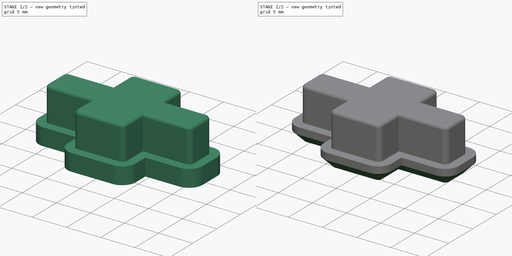
[diagram: build sequence overview — one tinted view per stage of 2, left to right]
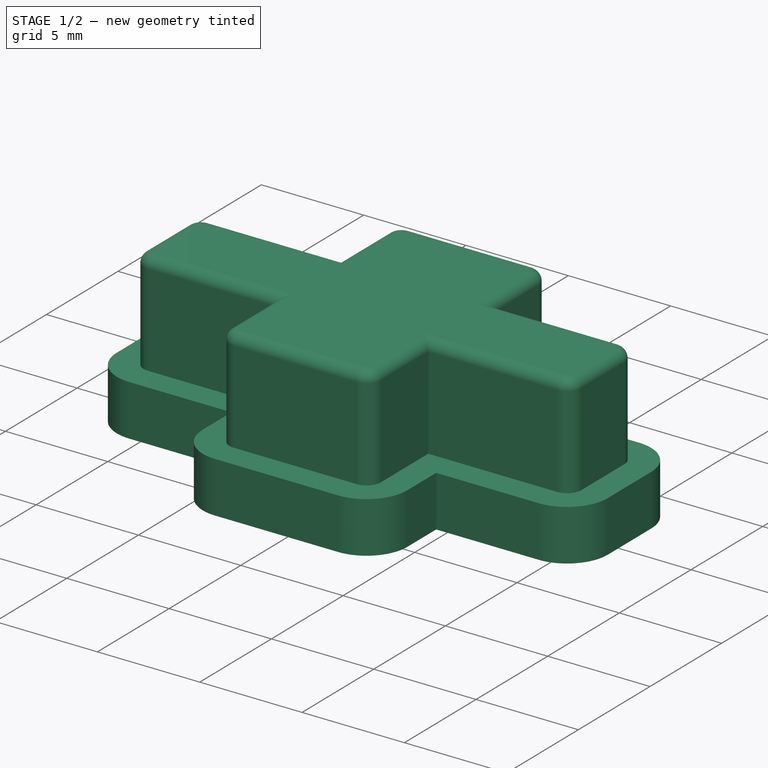
[diagram: stage 1 of 2 — iso view after this stage's code; geometry added in this stage tinted green]
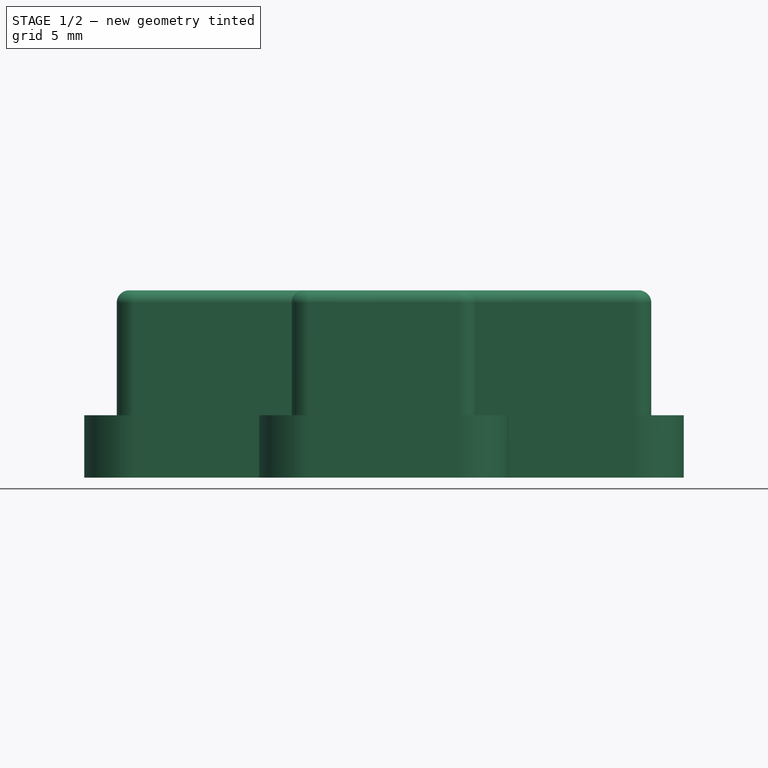
[diagram: stage 1 of 2 — front view after this stage's code; geometry added in this stage tinted green]
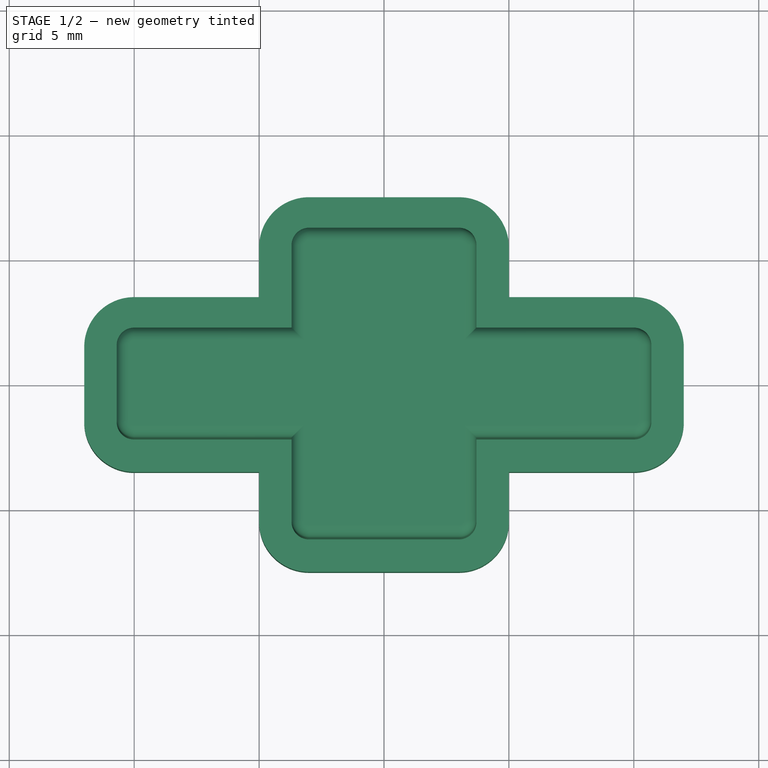
[diagram: stage 1 of 2 — top view after this stage's code; geometry added in this stage tinted green]
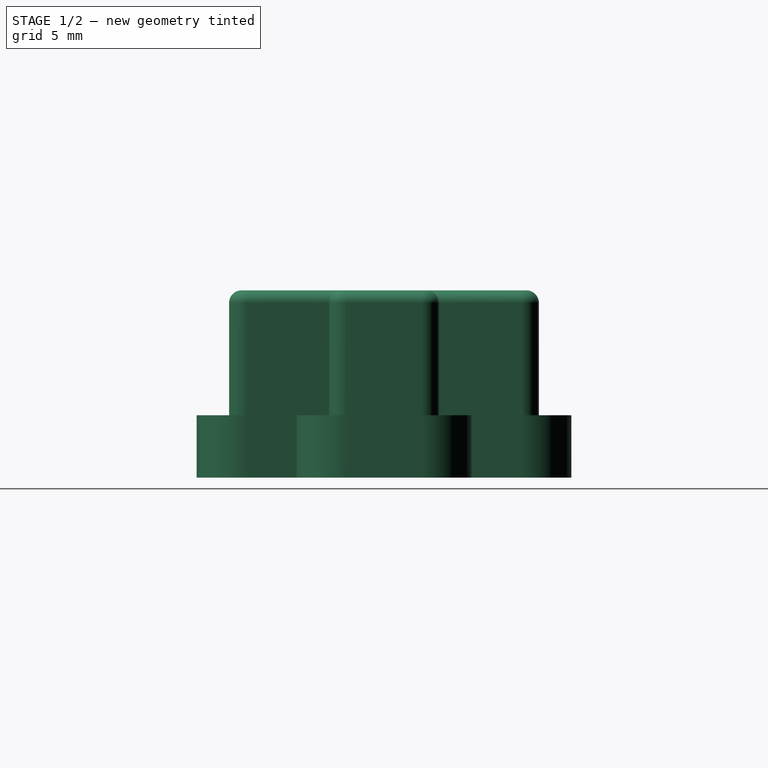
[diagram: stage 1 of 2 — right view after this stage's code; geometry added in this stage tinted green]
FCSTD DOCUMENT  (FreeCAD 0.20R29410 (Git))
Label: DevKitty-Button-v2
License: All rights reserved
LicenseURL: http://en.wikipedia.org/wiki/All_rights_reserved
objects: Sketcher::SketchObject×2, PartDesign::Pad×2, PartDesign::Body×1, Part::MultiFuse×1, PartDesign::FeatureBase×1, PartDesign::Fillet×1, PartDesign::Chamfer×1
note: 13 computed .brp shape members not serialized (recipe doc carries the construction recipe); baked Part::Feature solids carry a one-line shape summary decoded from their .brp

FEATURE [Sketcher::SketchObject] Sketch
  FullyConstrained = true
  MapMode = 5
  Support = -> [XY_Plane]
  sketch-geometry (58):
    g0: LineSegment StartX=-3 StartY=6.5 StartZ=0 EndX=3 EndY=6.5 EndZ=0
    g1: LineSegment StartX=4 StartY=5.5 StartZ=0 EndX=4 EndY=2.5 EndZ=0
    g2: LineSegment StartX=3 StartY=-6.5 StartZ=0 EndX=-3 EndY=-6.5 EndZ=0
    g3: LineSegment StartX=-4 StartY=-5.5 StartZ=0 EndX=-4 EndY=-2.5 EndZ=0
    g4: LineSegment StartX=-10 StartY=2.5 StartZ=0 EndX=-4 EndY=2.5 EndZ=0
    g5: LineSegment StartX=11 StartY=1.5 StartZ=0 EndX=11 EndY=-1.5 EndZ=0
    g6: LineSegment StartX=10 StartY=-2.5 StartZ=0 EndX=4 EndY=-2.5 EndZ=0
    g7: LineSegment StartX=-11 StartY=-1.5 StartZ=0 EndX=-11 EndY=1.5 EndZ=0
    g8: LineSegment StartX=4 StartY=2.5 StartZ=0 EndX=10 EndY=2.5 EndZ=0
    g9: LineSegment StartX=4 StartY=-2.5 StartZ=0 EndX=4 EndY=-5.5 EndZ=0
    g10: LineSegment StartX=-4 StartY=-2.5 StartZ=0 EndX=-10 EndY=-2.5 EndZ=0
    g11: LineSegment StartX=-4 StartY=2.5 StartZ=0 EndX=-4 EndY=5.5 EndZ=0
    g12: ArcOfCircle CenterX=-3 CenterY=5.5 CenterZ=0 NormalX=0 NormalY=0 NormalZ=1 AngleXU=0 Radius=1 StartAngle=1.5708 EndAngle=3.14159
    g13: GeomPoint X=-4 Y=6.5 Z=0
    g14: ArcOfCircle CenterX=3 CenterY=5.5 CenterZ=0 NormalX=0 NormalY=0 NormalZ=1 AngleXU=0 Radius=1 StartAngle=0 EndAngle=1.5708
    g15: GeomPoint X=4 Y=6.5 Z=0
    g16: ArcOfCircle CenterX=-10 CenterY=1.5 CenterZ=0 NormalX=0 NormalY=0 NormalZ=1 AngleXU=0 Radius=1 StartAngle=1.5708 EndAngle=3.14159
    g17: GeomPoint X=-11 Y=2.5 Z=0
    g18: ArcOfCircle CenterX=-10 CenterY=-1.5 CenterZ=0 NormalX=0 NormalY=0 NormalZ=1 AngleXU=0 Radius=1 StartAngle=3.14159 EndAngle=4.71239
    g19: GeomPoint X=-11 Y=-2.5 Z=0
    g20: ArcOfCircle CenterX=10 CenterY=1.5 CenterZ=0 NormalX=0 NormalY=0 NormalZ=1 AngleXU=0 Radius=1 StartAngle=0 EndAngle=1.5708
    g21: GeomPoint X=11 Y=2.5 Z=0
    g22: ArcOfCircle CenterX=10 CenterY=-1.5 CenterZ=0 NormalX=0 NormalY=0 NormalZ=1 AngleXU=0 Radius=1 StartAngle=4.71239 EndAngle=6.28319
    g23: GeomPoint X=11 Y=-2.5 Z=0
    g24: ArcOfCircle CenterX=-3 CenterY=-5.5 CenterZ=0 NormalX=0 NormalY=0 NormalZ=1 AngleXU=0 Radius=1 StartAngle=3.14159 EndAngle=4.71239
    g25: GeomPoint X=-4 Y=-6.5 Z=0
    g26: ArcOfCircle CenterX=3 CenterY=-5.5 CenterZ=0 NormalX=0 NormalY=0 NormalZ=1 AngleXU=0 Radius=1 StartAngle=4.71239 EndAngle=6.28319
    g27: GeomPoint X=4 Y=-6.5 Z=0
    g28: LineSegment StartX=-11 StartY=0 StartZ=0 EndX=11 EndY=0 EndZ=0
    g29: LineSegment StartX=0 StartY=6.5 StartZ=0 EndX=0 EndY=-6.5 EndZ=0
    g30: LineSegment StartX=-3 StartY=6.2 StartZ=0 EndX=3 EndY=6.2 EndZ=0
    g31: LineSegment StartX=3.7 StartY=5.5 StartZ=0 EndX=3.7 EndY=2.2 EndZ=0
    g32: LineSegment StartX=3 StartY=-6.2 StartZ=0 EndX=-3 EndY=-6.2 EndZ=0
    g33: LineSegment StartX=-3.7 StartY=-5.5 StartZ=0 EndX=-3.7 EndY=-2.2 EndZ=0
    g34: LineSegment StartX=-10 StartY=2.2 StartZ=0 EndX=-3.7 EndY=2.2 EndZ=0
    g35: LineSegment StartX=10.7 StartY=1.5 StartZ=0 EndX=10.7 EndY=-1.5 EndZ=0
    g36: LineSegment StartX=10 StartY=-2.2 StartZ=0 EndX=3.7 EndY=-2.2 EndZ=0
    g37: LineSegment StartX=-10.7 StartY=-1.5 StartZ=0 EndX=-10.7 EndY=1.5 EndZ=0
    g38: LineSegment StartX=3.7 StartY=-2.2 StartZ=0 EndX=3.7 EndY=-5.5 EndZ=0
    g39: LineSegment StartX=-3.7 StartY=-2.2 StartZ=0 EndX=-10 EndY=-2.2 EndZ=0
    g40: LineSegment StartX=-3.7 StartY=2.2 StartZ=0 EndX=-3.7 EndY=5.5 EndZ=0
    g41: LineSegment StartX=3.7 StartY=2.2 StartZ=0 EndX=10 EndY=2.2 EndZ=0
    g42: ArcOfCircle CenterX=-3 CenterY=5.5 CenterZ=0 NormalX=0 NormalY=0 NormalZ=1 AngleXU=0 Radius=0.7 StartAngle=1.5708 EndAngle=3.14159
    g43: GeomPoint X=-3.7 Y=6.2 Z=0
    g44: ArcOfCircle CenterX=3 CenterY=5.5 CenterZ=0 NormalX=0 NormalY=0 NormalZ=1 AngleXU=0 Radius=0.7 StartAngle=4e-16 EndAngle=1.5708
    g45: GeomPoint X=3.7 Y=6.2 Z=0
    g46: ArcOfCircle CenterX=10 CenterY=1.5 CenterZ=0 NormalX=0 NormalY=0 NormalZ=1 AngleXU=0 Radius=0.7 StartAngle=0 EndAngle=1.5708
    g47: GeomPoint X=10.7 Y=2.2 Z=0
    g48: ArcOfCircle CenterX=10 CenterY=-1.5 CenterZ=0 NormalX=0 NormalY=0 NormalZ=1 AngleXU=0 Radius=0.7 StartAngle=4.71239 EndAngle=6.28319
    g49: GeomPoint X=10.7 Y=-2.2 Z=0
    g50: ArcOfCircle CenterX=3 CenterY=-5.5 CenterZ=0 NormalX=0 NormalY=0 NormalZ=1 AngleXU=0 Radius=0.7 StartAngle=4.71239 EndAngle=6.28319
    g51: GeomPoint X=3.7 Y=-6.2 Z=0
    g52: ArcOfCircle CenterX=-3 CenterY=-5.5 CenterZ=0 NormalX=0 NormalY=0 NormalZ=1 AngleXU=0 Radius=0.7 StartAngle=3.14159 EndAngle=4.71239
    g53: GeomPoint X=-3.7 Y=-6.2 Z=0
    g54: ArcOfCircle CenterX=-10 CenterY=-1.5 CenterZ=0 NormalX=0 NormalY=0 NormalZ=1 AngleXU=0 Radius=0.7 StartAngle=3.14159 EndAngle=4.71239
    g55: GeomPoint X=-10.7 Y=-2.2 Z=0
    g56: ArcOfCircle CenterX=-10 CenterY=1.5 CenterZ=0 NormalX=0 NormalY=0 NormalZ=1 AngleXU=0 Radius=0.7 StartAngle=1.5708 EndAngle=3.14159
    g57: GeomPoint X=-10.7 Y=2.2 Z=0
  constraints (133):
    c: Horizontal(g0)
    c: Horizontal(g2)
    c: Vertical(g1)
    c: Vertical(g3)
    c: Horizontal(g4)
    c: Horizontal(g6)
    c: Vertical(g5)
    c: Vertical(g7)
    c: Coincident(g1,g8)
    c: Coincident(g6,g9)
    c: Coincident(g3,g10)
    c: Coincident(g11,g4)
    c: PointOnObject(g13,g11)
    c: PointOnObject(g13,g0)
    c: Tangent(g11,g12) = 1.5708
    c: Tangent(g0,g12) = 1.5708
    c: PointOnObject(g15,g0)
    c: PointOnObject(g15,g1)
    c: Tangent(g0,g14) = 1.5708
    c: Tangent(g1,g14) = 1.5708
    c: PointOnObject(g17,g7)
    c: PointOnObject(g17,g4)
    c: Tangent(g7,g16) = 1.5708
    c: Tangent(g4,g16) = 1.5708
    c: PointOnObject(g19,g7)
    c: PointOnObject(g19,g10)
    c: Tangent(g7,g18) = 1.5708
    c: Tangent(g10,g18) = 1.5708
    c: PointOnObject(g21,g8)
    c: PointOnObject(g21,g5)
    c: Tangent(g8,g20) = 1.5708
    c: Tangent(g5,g20) = 1.5708
    c: PointOnObject(g23,g5)
    c: PointOnObject(g23,g6)
    c: Tangent(g5,g22) = 1.5708
    c: Tangent(g6,g22) = 1.5708
    c: PointOnObject(g25,g3)
    c: PointOnObject(g25,g2)
    c: Tangent(g3,g24) = 1.5708
    c: Tangent(g2,g24) = 1.5708
    c: PointOnObject(g27,g2)
    c: PointOnObject(g27,g9)
    c: Tangent(g2,g26) = 1.5708
    c: Tangent(g9,g26) = 1.5708
    c: Equal(g16,g18)
    c: Equal(g18,g24)
    c: Equal(g24,g26)
    c: Equal(g26,g22)
    c: Equal(g22,g20)
    c: Equal(g20,g14)
    c: Equal(g14,g12)
    c: Vertical(g11)
    c: Horizontal(g10)
    c: Vertical(g9)
    c: Horizontal(g8)
    c: PointOnObject(g28,g7)
    c: PointOnObject(g28,g5)
    c: Horizontal(g28)
    c: PointOnObject(g29,g0)
    c: PointOnObject(g29,g2)
    c: PointOnObject(g-1,g29)
    c: PointOnObject(g-1,g28)
    c: Symmetric(g6,g1,g28)
    c: Symmetric(g1,g4,g29)
    c: Horizontal(g3,g6)
    c: Symmetric(g7,g5,g29)
    c: Symmetric(g0,g2,g28)
    c: DistanceY(g29,g29) = 13
    c: Radius(g14) = 1
    c: DistanceX(g28,g28) = 22
    c: DistanceX(g25,g27) = 8
    c: DistanceY(g6,g1) = 5
    c: Horizontal(g30)
    c: Horizontal(g32)
    c: Vertical(g31)
    c: Vertical(g33)
    c: Horizontal(g34)
    c: Horizontal(g36)
    c: Vertical(g35)
    c: Vertical(g37)
    c: Coincident(g36,g38)
    c: Coincident(g33,g39)
    c: Coincident(g34,g40)
    c: PointOnObject(g43,g40)
    c: PointOnObject(g43,g30)
    c: Tangent(g40,g42) = 1.5708
    c: Tangent(g30,g42) = 1.5708
    c: PointOnObject(g45,g30)
    c: PointOnObject(g45,g31)
    c: Tangent(g30,g44) = 1.5708
    c: Tangent(g31,g44) = 1.5708
    c: PointOnObject(g47,g41)
    c: PointOnObject(g47,g35)
    c: Tangent(g41,g46) = 1.5708
    c: Tangent(g35,g46) = 1.5708
    c: PointOnObject(g49,g35)
    c: PointOnObject(g49,g36)
    c: Tangent(g35,g48) = 1.5708
    c: Tangent(g36,g48) = 1.5708
    c: PointOnObject(g51,g38)
    c: PointOnObject(g51,g32)
    c: Tangent(g38,g50) = 1.5708
    c: Tangent(g32,g50) = 1.5708
    c: PointOnObject(g53,g33)
    c: PointOnObject(g53,g32)
    c: Tangent(g33,g52) = 1.5708
    c: Tangent(g32,g52) = 1.5708
    c: PointOnObject(g55,g37)
    c: PointOnObject(g55,g39)
    c: Tangent(g37,g54) = 1.5708
    c: Tangent(g39,g54) = 1.5708
    c: PointOnObject(g57,g37)
    c: PointOnObject(g57,g34)
    c: Tangent(g37,g56) = 1.5708
    c: Tangent(g34,g56) = 1.5708
    c: Equal(g52,g50)
    c: Equal(g50,g48)
    c: Equal(g48,g46)
    c: Equal(g46,g44)
    c: Equal(g44,g42)
    c: Equal(g42,g56)
    c: Equal(g56,g54)
    c: Vertical(g40)
    c: Coincident(g41,g31)
    c: Coincident(g48,g22)
    c: Horizontal(g39)
    c: Symmetric(g33,g36,g29)
    c: Symmetric(g33,g34,g28)
    c: Symmetric(g36,g31,g28)
    c: Coincident(g42,g12)
    c: Symmetric(g56,g46,g29)
    c: Symmetric(g50,g44,g28)
    c: DistanceY(g6,g36) = 0.3
FEATURE [Sketcher::SketchObject] Sketch002
  FullyConstrained = true
  MapMode = 5
  Support = -> [XY_Plane]
  sketch-geometry (58):
    g0: LineSegment StartX=-3 StartY=6.5 StartZ=0 EndX=3 EndY=6.5 EndZ=0
    g1: LineSegment StartX=4 StartY=5.5 StartZ=0 EndX=4 EndY=2.5 EndZ=0
    g2: LineSegment StartX=3 StartY=-6.5 StartZ=0 EndX=-3 EndY=-6.5 EndZ=0
    g3: LineSegment StartX=-4 StartY=-5.5 StartZ=0 EndX=-4 EndY=-2.5 EndZ=0
    g4: LineSegment StartX=-10 StartY=2.5 StartZ=0 EndX=-4 EndY=2.5 EndZ=0
    g5: LineSegment StartX=11 StartY=1.5 StartZ=0 EndX=11 EndY=-1.5 EndZ=0
    g6: LineSegment StartX=10 StartY=-2.5 StartZ=0 EndX=4 EndY=-2.5 EndZ=0
    g7: LineSegment StartX=-11 StartY=-1.5 StartZ=0 EndX=-11 EndY=1.5 EndZ=0
    g8: LineSegment StartX=4 StartY=2.5 StartZ=0 EndX=10 EndY=2.5 EndZ=0
    g9: LineSegment StartX=4 StartY=-2.5 StartZ=0 EndX=4 EndY=-5.5 EndZ=0
    g10: LineSegment StartX=-4 StartY=-2.5 StartZ=0 EndX=-10 EndY=-2.5 EndZ=0
    g11: LineSegment StartX=-4 StartY=2.5 StartZ=0 EndX=-4 EndY=5.5 EndZ=0
    g12: ArcOfCircle CenterX=-3 CenterY=5.5 CenterZ=0 NormalX=0 NormalY=0 NormalZ=1 AngleXU=0 Radius=1 StartAngle=1.5708 EndAngle=3.14159
    g13: GeomPoint X=-4 Y=6.5 Z=0
    g14: ArcOfCircle CenterX=3 CenterY=5.5 CenterZ=0 NormalX=0 NormalY=0 NormalZ=1 AngleXU=0 Radius=1 StartAngle=0 EndAngle=1.5708
    g15: GeomPoint X=4 Y=6.5 Z=0
    g16: ArcOfCircle CenterX=-10 CenterY=1.5 CenterZ=0 NormalX=0 NormalY=0 NormalZ=1 AngleXU=0 Radius=1 StartAngle=1.5708 EndAngle=3.14159
    g17: GeomPoint X=-11 Y=2.5 Z=0
    g18: ArcOfCircle CenterX=-10 CenterY=-1.5 CenterZ=0 NormalX=0 NormalY=0 NormalZ=1 AngleXU=0 Radius=1 StartAngle=3.14159 EndAngle=4.71239
    g19: GeomPoint X=-11 Y=-2.5 Z=0
    g20: ArcOfCircle CenterX=10 CenterY=1.5 CenterZ=0 NormalX=0 NormalY=0 NormalZ=1 AngleXU=0 Radius=1 StartAngle=0 EndAngle=1.5708
    g21: GeomPoint X=11 Y=2.5 Z=0
    g22: ArcOfCircle CenterX=10 CenterY=-1.5 CenterZ=0 NormalX=0 NormalY=0 NormalZ=1 AngleXU=0 Radius=1 StartAngle=4.71239 EndAngle=6.28319
    g23: GeomPoint X=11 Y=-2.5 Z=0
    g24: ArcOfCircle CenterX=-3 CenterY=-5.5 CenterZ=0 NormalX=0 NormalY=0 NormalZ=1 AngleXU=0 Radius=1 StartAngle=3.14159 EndAngle=4.71239
    g25: GeomPoint X=-4 Y=-6.5 Z=0
    g26: ArcOfCircle CenterX=3 CenterY=-5.5 CenterZ=0 NormalX=0 NormalY=0 NormalZ=1 AngleXU=0 Radius=1 StartAngle=4.71239 EndAngle=6.28319
    g27: GeomPoint X=4 Y=-6.5 Z=0
    g28: LineSegment StartX=-11 StartY=0 StartZ=0 EndX=11 EndY=0 EndZ=0
    g29: LineSegment StartX=1e-16 StartY=6.5 StartZ=0 EndX=-1e-16 EndY=-6.5 EndZ=0
    g30: LineSegment StartX=-3 StartY=7.5 StartZ=0 EndX=3 EndY=7.5 EndZ=0
    g31: LineSegment StartX=5 StartY=5.5 StartZ=0 EndX=5 EndY=3.5 EndZ=0
    g32: LineSegment StartX=3 StartY=-7.5 StartZ=0 EndX=-3 EndY=-7.5 EndZ=0
    g33: LineSegment StartX=-5 StartY=-5.5 StartZ=0 EndX=-5 EndY=-3.5 EndZ=0
    g34: LineSegment StartX=-10 StartY=3.5 StartZ=0 EndX=-5 EndY=3.5 EndZ=0
    g35: LineSegment StartX=12 StartY=1.5 StartZ=0 EndX=12 EndY=-1.5 EndZ=0
    g36: LineSegment StartX=10 StartY=-3.5 StartZ=0 EndX=5 EndY=-3.5 EndZ=0
    g37: LineSegment StartX=-12 StartY=-1.5 StartZ=0 EndX=-12 EndY=1.5 EndZ=0
    g38: LineSegment StartX=5 StartY=-3.5 StartZ=0 EndX=5 EndY=-5.5 EndZ=0
    g39: LineSegment StartX=-5 StartY=-3.5 StartZ=0 EndX=-10 EndY=-3.5 EndZ=0
    g40: LineSegment StartX=-5 StartY=3.5 StartZ=0 EndX=-5 EndY=5.5 EndZ=0
    g41: LineSegment StartX=5 StartY=3.5 StartZ=0 EndX=10 EndY=3.5 EndZ=0
    g42: ArcOfCircle CenterX=-3 CenterY=5.5 CenterZ=0 NormalX=0 NormalY=0 NormalZ=1 AngleXU=0 Radius=2 StartAngle=1.5708 EndAngle=3.14159
    g43: GeomPoint X=-5 Y=7.5 Z=0
    g44: ArcOfCircle CenterX=3 CenterY=5.5 CenterZ=0 NormalX=0 NormalY=0 NormalZ=1 AngleXU=0 Radius=2 StartAngle=0 EndAngle=1.5708
    g45: GeomPoint X=5 Y=7.5 Z=0
    g46: ArcOfCircle CenterX=10 CenterY=1.5 CenterZ=0 NormalX=0 NormalY=0 NormalZ=1 AngleXU=0 Radius=2 StartAngle=0 EndAngle=1.5708
    g47: GeomPoint X=12 Y=3.5 Z=0
    g48: ArcOfCircle CenterX=10 CenterY=-1.5 CenterZ=0 NormalX=0 NormalY=0 NormalZ=1 AngleXU=0 Radius=2 StartAngle=4.71239 EndAngle=6.28319
    g49: GeomPoint X=12 Y=-3.5 Z=0
    g50: ArcOfCircle CenterX=3 CenterY=-5.5 CenterZ=0 NormalX=0 NormalY=0 NormalZ=1 AngleXU=0 Radius=2 StartAngle=4.71239 EndAngle=6.28319
    g51: GeomPoint X=5 Y=-7.5 Z=0
    g52: ArcOfCircle CenterX=-3 CenterY=-5.5 CenterZ=0 NormalX=0 NormalY=0 NormalZ=1 AngleXU=0 Radius=2 StartAngle=3.14159 EndAngle=4.71239
    g53: GeomPoint X=-5 Y=-7.5 Z=0
    g54: ArcOfCircle CenterX=-10 CenterY=-1.5 CenterZ=0 NormalX=0 NormalY=0 NormalZ=1 AngleXU=0 Radius=2 StartAngle=3.14159 EndAngle=4.71239
    g55: GeomPoint X=-12 Y=-3.5 Z=0
    g56: ArcOfCircle CenterX=-10 CenterY=1.5 CenterZ=0 NormalX=0 NormalY=0 NormalZ=1 AngleXU=0 Radius=2 StartAngle=1.5708 EndAngle=3.14159
    g57: GeomPoint X=-12 Y=3.5 Z=0
  constraints (133):
    c: Horizontal(g0)
    c: Horizontal(g2)
    c: Vertical(g1)
    c: Vertical(g3)
    c: Horizontal(g4)
    c: Horizontal(g6)
    c: Vertical(g5)
    c: Vertical(g7)
    c: Coincident(g1,g8)
    c: Coincident(g6,g9)
    c: Coincident(g3,g10)
    c: Coincident(g11,g4)
    c: PointOnObject(g13,g11)
    c: PointOnObject(g13,g0)
    c: Tangent(g11,g12) = 1.5708
    c: Tangent(g0,g12) = 1.5708
    c: PointOnObject(g15,g0)
    c: PointOnObject(g15,g1)
    c: Tangent(g0,g14) = 1.5708
    c: Tangent(g1,g14) = 1.5708
    c: PointOnObject(g17,g7)
    c: PointOnObject(g17,g4)
    c: Tangent(g7,g16) = 1.5708
    c: Tangent(g4,g16) = 1.5708
    c: PointOnObject(g19,g7)
    c: PointOnObject(g19,g10)
    c: Tangent(g7,g18) = 1.5708
    c: Tangent(g10,g18) = 1.5708
    c: PointOnObject(g21,g8)
    c: PointOnObject(g21,g5)
    c: Tangent(g8,g20) = 1.5708
    c: Tangent(g5,g20) = 1.5708
    c: PointOnObject(g23,g5)
    c: PointOnObject(g23,g6)
    c: Tangent(g5,g22) = 1.5708
    c: Tangent(g6,g22) = 1.5708
    c: PointOnObject(g25,g3)
    c: PointOnObject(g25,g2)
    c: Tangent(g3,g24) = 1.5708
    c: Tangent(g2,g24) = 1.5708
    c: PointOnObject(g27,g2)
    c: PointOnObject(g27,g9)
    c: Tangent(g2,g26) = 1.5708
    c: Tangent(g9,g26) = 1.5708
    c: Equal(g16,g18)
    c: Equal(g18,g24)
    c: Equal(g24,g26)
    c: Equal(g26,g22)
    c: Equal(g22,g20)
    c: Equal(g20,g14)
    c: Equal(g14,g12)
    c: Vertical(g11)
    c: Horizontal(g10)
    c: Vertical(g9)
    c: Horizontal(g8)
    c: PointOnObject(g28,g7)
    c: PointOnObject(g28,g5)
    c: Horizontal(g28)
    c: PointOnObject(g29,g0)
    c: PointOnObject(g29,g2)
    c: PointOnObject(g-1,g29)
    c: PointOnObject(g-1,g28)
    c: Symmetric(g6,g1,g28)
    c: Symmetric(g1,g4,g29)
    c: Horizontal(g3,g6)
    c: Symmetric(g7,g5,g29)
    c: Symmetric(g0,g2,g28)
    c: DistanceY(g29,g29) = 13
    c: Radius(g14) = 1
    c: DistanceX(g28,g28) = 22
    c: DistanceX(g25,g27) = 8
    c: DistanceY(g6,g1) = 5
    c: Horizontal(g30)
    c: Horizontal(g32)
    c: Vertical(g31)
    c: Vertical(g33)
    c: Horizontal(g34)
    c: Horizontal(g36)
    c: Vertical(g35)
    c: Vertical(g37)
    c: Coincident(g36,g38)
    c: Coincident(g33,g39)
    c: Coincident(g34,g40)
    c: PointOnObject(g43,g40)
    c: PointOnObject(g43,g30)
    c: Tangent(g40,g42) = 1.5708
    c: Tangent(g30,g42) = 1.5708
    c: PointOnObject(g45,g30)
    c: PointOnObject(g45,g31)
    c: Tangent(g30,g44) = 1.5708
    c: Tangent(g31,g44) = 1.5708
    c: PointOnObject(g47,g41)
    c: PointOnObject(g47,g35)
    c: Tangent(g41,g46) = 1.5708
    c: Tangent(g35,g46) = 1.5708
    c: PointOnObject(g49,g35)
    c: PointOnObject(g49,g36)
    c: Tangent(g35,g48) = 1.5708
    c: Tangent(g36,g48) = 1.5708
    c: PointOnObject(g51,g38)
    c: PointOnObject(g51,g32)
    c: Tangent(g38,g50) = 1.5708
    c: Tangent(g32,g50) = 1.5708
    c: PointOnObject(g53,g33)
    c: PointOnObject(g53,g32)
    c: Tangent(g33,g52) = 1.5708
    c: Tangent(g32,g52) = 1.5708
    c: PointOnObject(g55,g37)
    c: PointOnObject(g55,g39)
    c: Tangent(g37,g54) = 1.5708
    c: Tangent(g39,g54) = 1.5708
    c: PointOnObject(g57,g37)
    c: PointOnObject(g57,g34)
    c: Tangent(g37,g56) = 1.5708
    c: Tangent(g34,g56) = 1.5708
    c: Equal(g52,g50)
    c: Equal(g50,g48)
    c: Equal(g48,g46)
    c: Equal(g46,g44)
    c: Equal(g44,g42)
    c: Equal(g42,g56)
    c: Equal(g56,g54)
    c: Vertical(g40)
    c: Coincident(g41,g31)
    c: Coincident(g48,g22)
    c: Horizontal(g39)
    c: Symmetric(g33,g36,g29)
    c: Symmetric(g33,g34,g28)
    c: Symmetric(g36,g31,g28)
    c: Coincident(g42,g12)
    c: Symmetric(g56,g46,g29)
    c: Symmetric(g50,g44,g28)
    c: DistanceY(g36,g6) = 1
FEATURE [PartDesign::Body] Body
  BaseFeature = -> Fusion
  Group = -> [BaseFeature,Sketch,Pad,Sketch002,Pad001,Fillet,Chamfer]
  Origin = -> Origin
  Tip = -> Chamfer
FEATURE [PartDesign::Pad] Pad
  BaseFeature = -> BaseFeature
  Direction = (0,0,1)
  Length = 5
  Length2 = 10
  Profile = -> Sketch
  ReferenceAxis = -> Sketch [N_Axis]
  Type = 0
FEATURE [PartDesign::Pad] Pad001
  BaseFeature = -> Pad
  Direction = (0,0,1)
  Length = 2.5
  Length2 = 10
  Profile = -> Sketch002
  ReferenceAxis = -> Sketch002 [N_Axis]
  Reversed = true
  Type = 0
FEATURE [Part::MultiFuse] Fusion
  Shapes = -> [Pad,Pad001]
FEATURE [PartDesign::FeatureBase] BaseFeature
  BaseFeature = -> Fusion
FEATURE [PartDesign::Fillet] Fillet
  Base = -> BaseFeature [Face5]
  BaseFeature = -> BaseFeature
  Radius = 0.5
  SupportTransform = false
  UseAllEdges = false
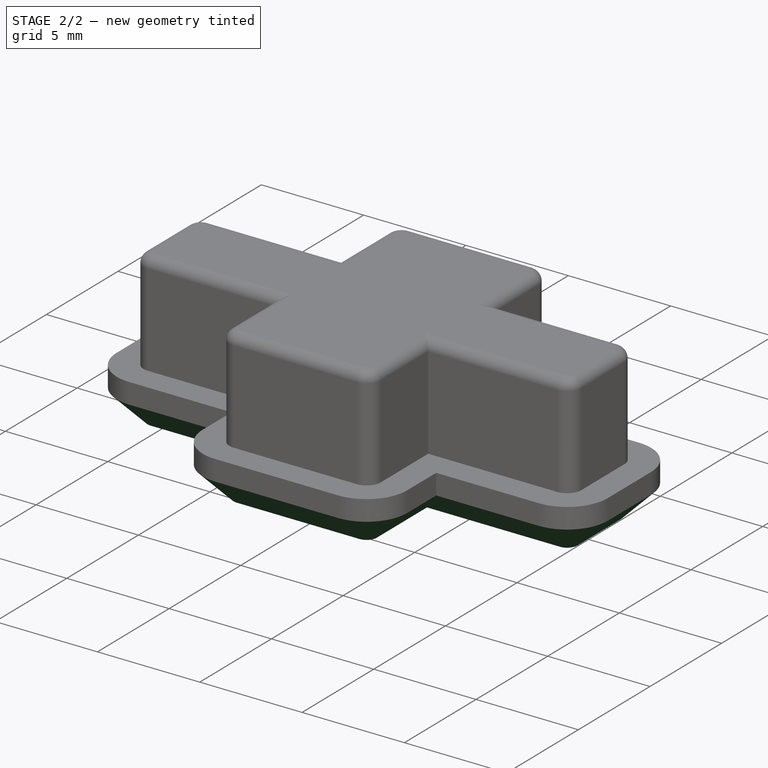
[diagram: stage 2 of 2 — iso view after this stage's code; geometry added in this stage tinted green]
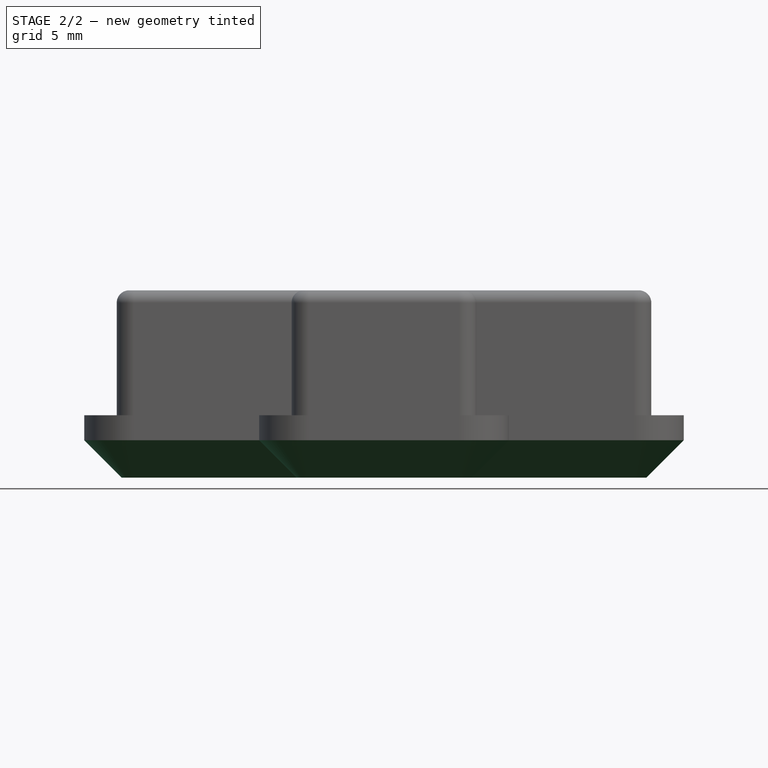
[diagram: stage 2 of 2 — front view after this stage's code; geometry added in this stage tinted green]
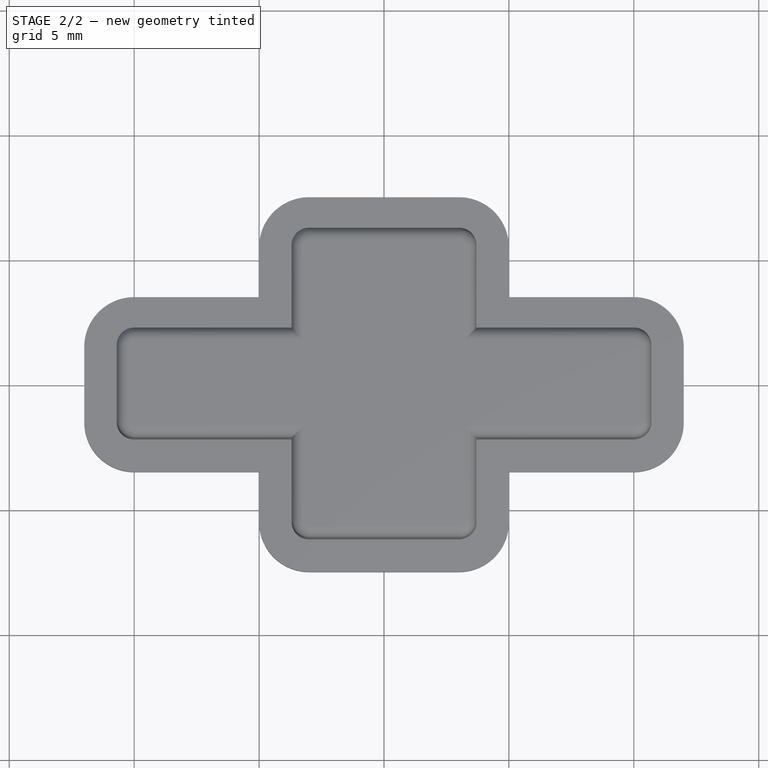
[diagram: stage 2 of 2 — top view after this stage's code; geometry added in this stage tinted green]
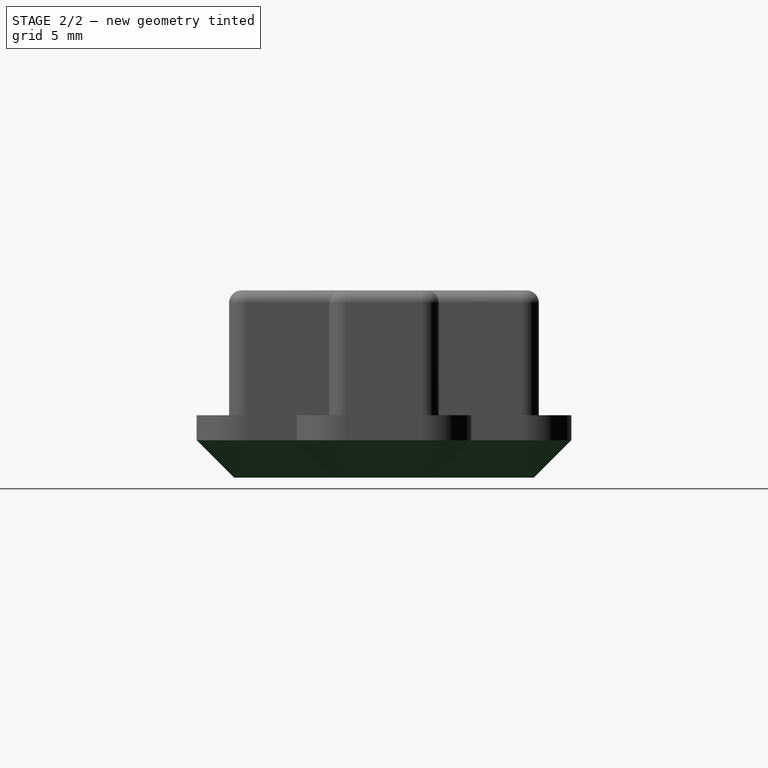
[diagram: stage 2 of 2 — right view after this stage's code; geometry added in this stage tinted green]
FEATURE [PartDesign::Chamfer] Chamfer
  Angle = 45
  Base = -> Fillet [Face63]
  BaseFeature = -> Fillet
  ChamferType = 0
  FlipDirection = false
  Size = 1.5
  Size2 = 1
  SupportTransform = false
  UseAllEdges = false
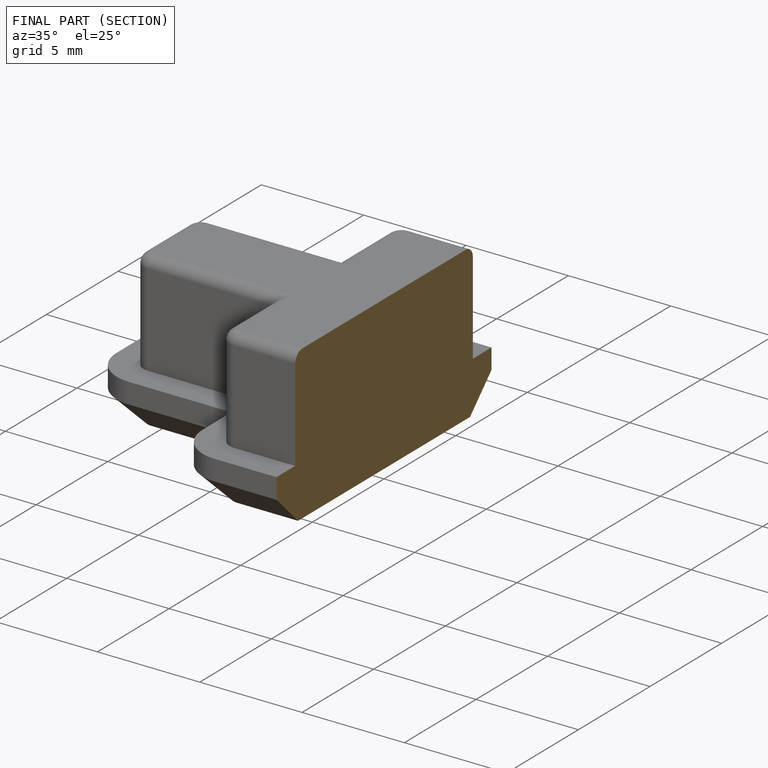
[diagram: finished part — half-section view (interior)]
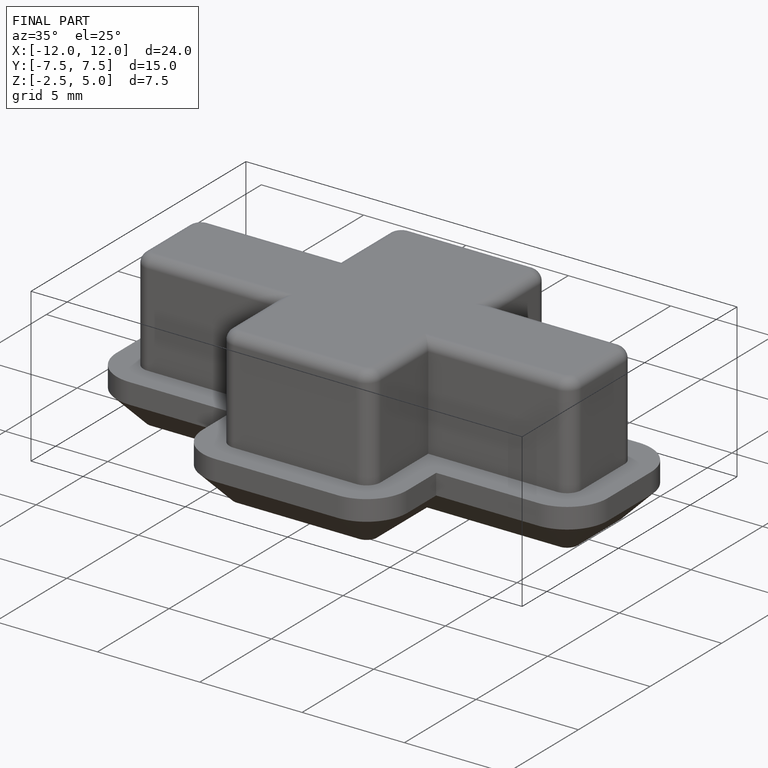
[diagram: finished part — iso view with bounding-box wireframe]
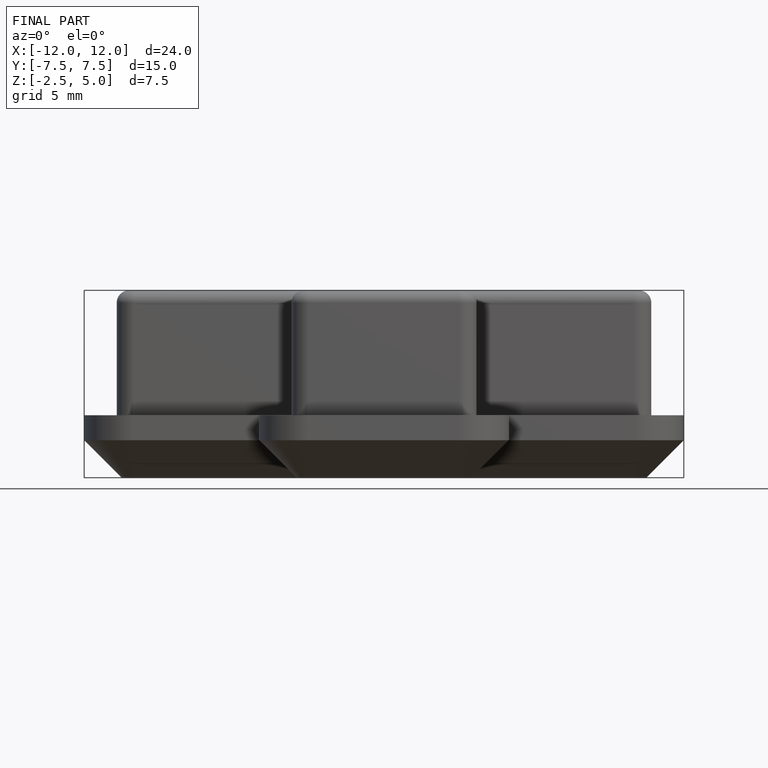
[diagram: finished part — front view with bounding-box wireframe]
